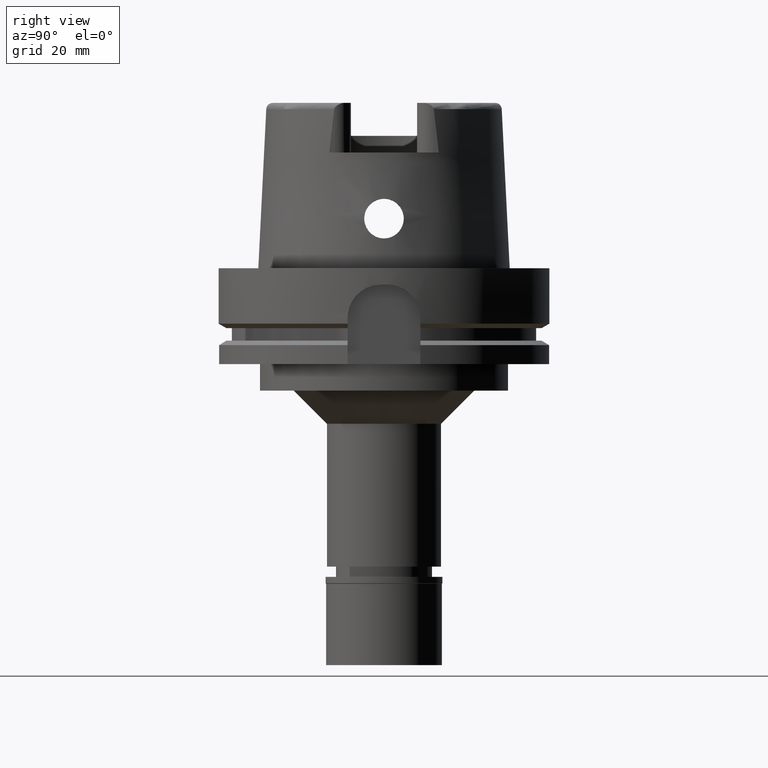
[diagram: clean part render]
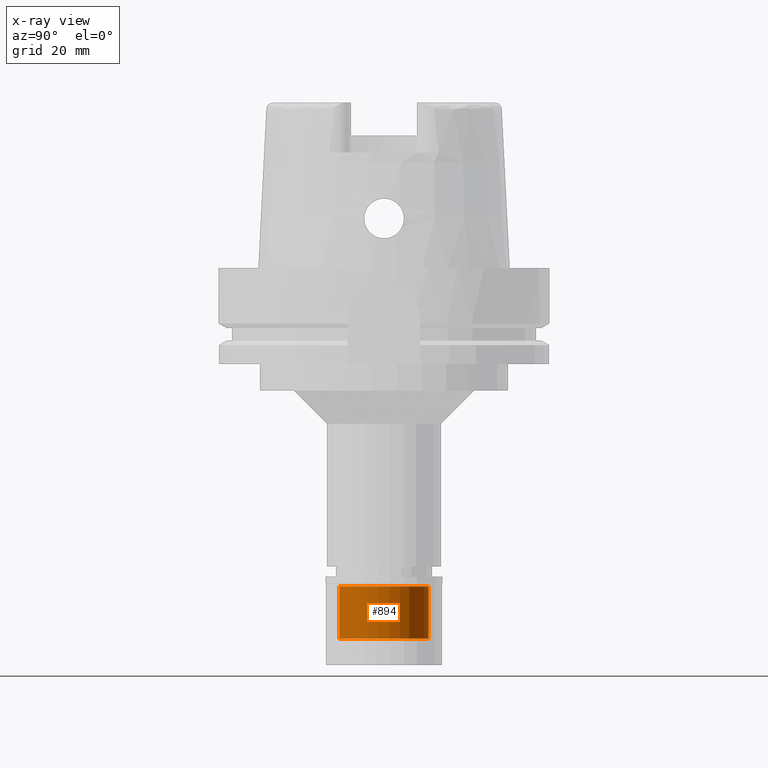
[diagram: x-ray — body ghosted, one internal face saturated and labeled with its STEP entity id]
A machine part, right view, then the same camera in x-ray: the body is ghosted and one INTERNAL B-rep face — a face not visible from any outside direction — is saturated and labeled: STEP entity #894.
In plain terms, the highlighted cylindrical surface (partial cylindrical patch) has radius 13.5 mm, axis along (0, 0, -1).
Its self-contained STEP definition (entity closure, byte-faithful):
#121 = CARTESIAN_POINT ( 'NONE',  ( 0.0000000000000000000, -13.50000000000000000, -18.70000000000000284 ) ) ;
#153 = CARTESIAN_POINT ( 'NONE',  ( 0.0000000000000000000, 13.50000000000000000, -18.70000000000000284 ) ) ;
#313 = FACE_OUTER_BOUND ( 'NONE', #706, .T. ) ;
#460 = DIRECTION ( 'NONE',  ( 0.0000000000000000000, 0.0000000000000000000, 1.000000000000000000 ) ) ;
#511 = EDGE_CURVE ( 'NONE', #5349, #3212, #1908, .T. ) ;
#550 = LINE ( 'NONE', #121, #3254 ) ;
#656 = CARTESIAN_POINT ( 'NONE',  ( 0.0000000000000000000, 0.0000000000000000000, -2.899999999999999911 ) ) ;
#706 = EDGE_LOOP ( 'NONE', ( #1737, #1015, #4450, #3837 ) ) ;
#713 = CARTESIAN_POINT ( 'NONE',  ( 0.0000000000000000000, -13.50000000000000000, -18.70000000000000284 ) ) ;
#894 = ADVANCED_FACE ( 'NONE', ( #313 ), #3297, .F. ) ;
#1015 = ORIENTED_EDGE ( 'NONE', *, *, #2374, .T. ) ;
#1044 = CIRCLE ( 'NONE', #5495, 13.50000000000000000 ) ;
#1105 = AXIS2_PLACEMENT_3D ( 'NONE', #4613, #1220, #3419 ) ;
#1220 = DIRECTION ( 'NONE',  ( 0.0000000000000000000, 0.0000000000000000000, -1.000000000000000000 ) ) ;
#1520 = DIRECTION ( 'NONE',  ( 0.0000000000000000000, 0.0000000000000000000, 1.000000000000000000 ) ) ;
#1714 = CARTESIAN_POINT ( 'NONE',  ( 0.0000000000000000000, 13.50000000000000000, -18.70000000000000284 ) ) ;
#1737 = ORIENTED_EDGE ( 'NONE', *, *, #511, .T. ) ;
#1908 = CIRCLE ( 'NONE', #1105, 13.50000000000000000 ) ;
#1927 = VERTEX_POINT ( 'NONE', #3703 ) ;
#2086 = AXIS2_PLACEMENT_3D ( 'NONE', #2904, #4691, #4197 ) ;
#2341 = EDGE_CURVE ( 'NONE', #1927, #2359, #1044, .T. ) ;
#2359 = VERTEX_POINT ( 'NONE', #4402 ) ;
#2374 = EDGE_CURVE ( 'NONE', #3212, #1927, #550, .T. ) ;
#2720 = DIRECTION ( 'NONE',  ( 0.0000000000000000000, 0.0000000000000000000, 1.000000000000000000 ) ) ;
#2724 = EDGE_CURVE ( 'NONE', #5349, #2359, #3912, .T. ) ;
#2904 = CARTESIAN_POINT ( 'NONE',  ( 0.0000000000000000000, 0.0000000000000000000, 0.0000000000000000000 ) ) ;
#3212 = VERTEX_POINT ( 'NONE', #713 ) ;
#3254 = VECTOR ( 'NONE', #2720, 1000.000000000000000 ) ;
#3297 = CYLINDRICAL_SURFACE ( 'NONE', #2086, 13.50000000000000000 ) ;
#3419 = DIRECTION ( 'NONE',  ( 0.0000000000000000000, 1.000000000000000000, 0.0000000000000000000 ) ) ;
#3703 = CARTESIAN_POINT ( 'NONE',  ( 0.0000000000000000000, -13.50000000000000000, -2.899999999999999911 ) ) ;
#3837 = ORIENTED_EDGE ( 'NONE', *, *, #2724, .F. ) ;
#3912 = LINE ( 'NONE', #1714, #4893 ) ;
#4197 = DIRECTION ( 'NONE',  ( 0.0000000000000000000, -1.000000000000000000, 0.0000000000000000000 ) ) ;
#4402 = CARTESIAN_POINT ( 'NONE',  ( 0.0000000000000000000, 13.50000000000000000, -2.899999999999999911 ) ) ;
#4450 = ORIENTED_EDGE ( 'NONE', *, *, #2341, .T. ) ;
#4613 = CARTESIAN_POINT ( 'NONE',  ( 0.0000000000000000000, 0.0000000000000000000, -18.70000000000000284 ) ) ;
#4691 = DIRECTION ( 'NONE',  ( 0.0000000000000000000, 0.0000000000000000000, -1.000000000000000000 ) ) ;
#4893 = VECTOR ( 'NONE', #460, 1000.000000000000000 ) ;
#5298 = DIRECTION ( 'NONE',  ( 0.0000000000000000000, -1.000000000000000000, 0.0000000000000000000 ) ) ;
#5349 = VERTEX_POINT ( 'NONE', #153 ) ;
#5495 = AXIS2_PLACEMENT_3D ( 'NONE', #656, #1520, #5298 ) ;